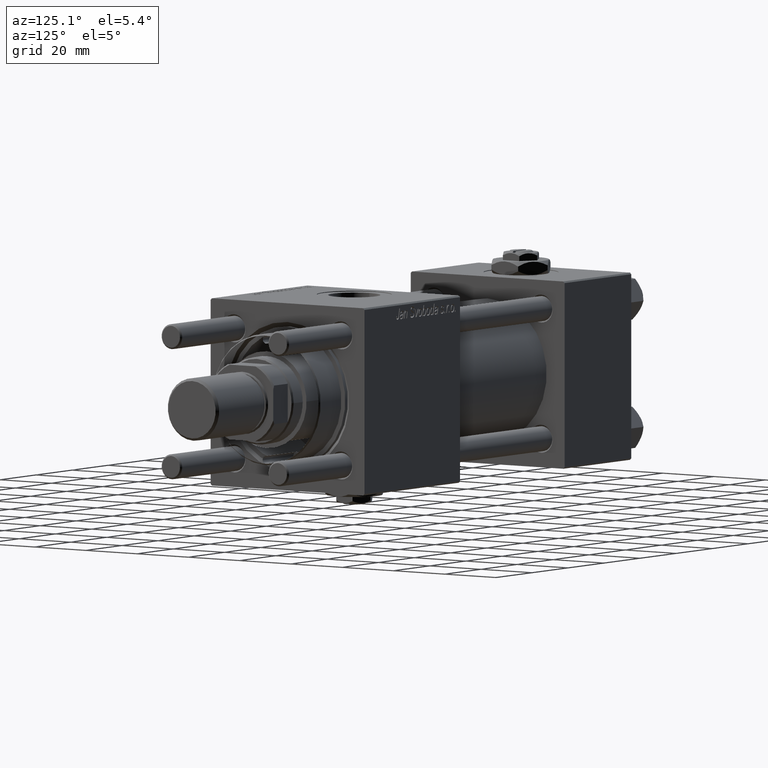
[diagram: clean part render]
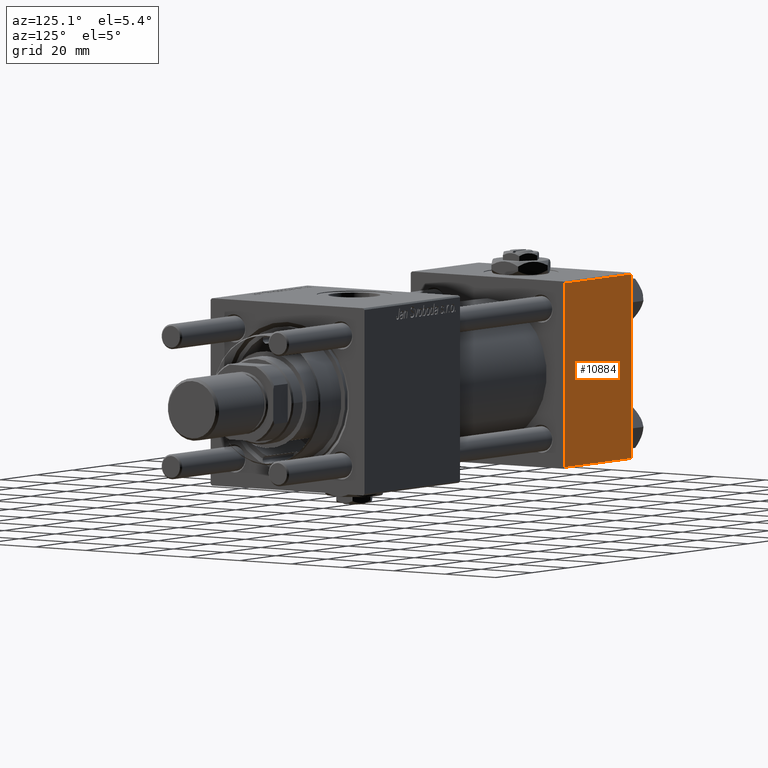
[diagram: same view with one face highlighted and labeled with its STEP entity id]
A machine part, auxiliary view. The second image highlights one B-rep face of the part: STEP entity #10884.
In plain terms, the highlighted planar face has unit normal (0, 1, 0).
Its self-contained STEP definition (entity closure, byte-faithful):
#3111 = VERTEX_POINT ( 'NONE', #53775 ) ;
#4447 = DIRECTION ( 'NONE',  ( 0.000000000000000000, -0.000000000000000000, 1.000000000000000000 ) ) ;
#7111 = EDGE_CURVE ( 'NONE', #34619, #3111, #8692, .T. ) ;
#7286 = LINE ( 'NONE', #26217, #45484 ) ;
#8692 = LINE ( 'NONE', #9300, #56288 ) ;
#9104 = CARTESIAN_POINT ( 'NONE',  ( 37.00000000000000000, 29.99999999999999289, 30.00000000000000000 ) ) ;
#9300 = CARTESIAN_POINT ( 'NONE',  ( 0.000000000000000000, 29.99999999999999289, 30.00000000000000000 ) ) ;
#9614 = CARTESIAN_POINT ( 'NONE',  ( 37.00000000000000000, 29.99999999999999289, 29.50000000000000000 ) ) ;
#10884 = ADVANCED_FACE ( 'NONE', ( #44782 ), #31820, .T. ) ;
#11055 = ORIENTED_EDGE ( 'NONE', *, *, #7111, .F. ) ;
#15051 = ORIENTED_EDGE ( 'NONE', *, *, #48606, .T. ) ;
#15887 = EDGE_CURVE ( 'NONE', #34619, #35043, #29256, .T. ) ;
#17197 = DIRECTION ( 'NONE',  ( -1.000000000000000000, 0.000000000000000000, 0.000000000000000000 ) ) ;
#17544 = CARTESIAN_POINT ( 'NONE',  ( 37.00000000000000000, 29.99999999999999289, -29.50000000000000000 ) ) ;
#23843 = LINE ( 'NONE', #9104, #29140 ) ;
#26217 = CARTESIAN_POINT ( 'NONE',  ( 37.00000000000000000, 29.99999999999999289, -29.50000000000000000 ) ) ;
#28664 = DIRECTION ( 'NONE',  ( 0.000000000000000000, 0.000000000000000000, -1.000000000000000000 ) ) ;
#29140 = VECTOR ( 'NONE', #28664, 1000.000000000000000 ) ;
#29256 = LINE ( 'NONE', #47631, #37469 ) ;
#30182 = EDGE_CURVE ( 'NONE', #48568, #3111, #7286, .T. ) ;
#31820 = PLANE ( 'NONE',  #41008 ) ;
#34619 = VERTEX_POINT ( 'NONE', #59515 ) ;
#35043 = VERTEX_POINT ( 'NONE', #9614 ) ;
#37469 = VECTOR ( 'NONE', #43399, 1000.000000000000000 ) ;
#38113 = EDGE_LOOP ( 'NONE', ( #15051, #52674, #11055, #49325 ) ) ;
#41008 = AXIS2_PLACEMENT_3D ( 'NONE', #58911, #45662, #4447 ) ;
#41196 = DIRECTION ( 'NONE',  ( 0.000000000000000000, 0.000000000000000000, -1.000000000000000000 ) ) ;
#43399 = DIRECTION ( 'NONE',  ( 1.000000000000000000, 0.000000000000000000, 0.000000000000000000 ) ) ;
#44782 = FACE_OUTER_BOUND ( 'NONE', #38113, .T. ) ;
#45484 = VECTOR ( 'NONE', #17197, 1000.000000000000000 ) ;
#45662 = DIRECTION ( 'NONE',  ( -0.000000000000000000, 1.000000000000000000, 0.000000000000000000 ) ) ;
#47631 = CARTESIAN_POINT ( 'NONE',  ( 37.00000000000000000, 29.99999999999999289, 29.50000000000000000 ) ) ;
#48568 = VERTEX_POINT ( 'NONE', #17544 ) ;
#48606 = EDGE_CURVE ( 'NONE', #35043, #48568, #23843, .T. ) ;
#49325 = ORIENTED_EDGE ( 'NONE', *, *, #15887, .T. ) ;
#52674 = ORIENTED_EDGE ( 'NONE', *, *, #30182, .T. ) ;
#53775 = CARTESIAN_POINT ( 'NONE',  ( 0.000000000000000000, 29.99999999999999289, -29.50000000000000000 ) ) ;
#56288 = VECTOR ( 'NONE', #41196, 1000.000000000000000 ) ;
#58911 = CARTESIAN_POINT ( 'NONE',  ( 37.00000000000000000, 29.99999999999999289, 30.00000000000000000 ) ) ;
#59515 = CARTESIAN_POINT ( 'NONE',  ( 0.000000000000000000, 29.99999999999999289, 29.50000000000000000 ) ) ;